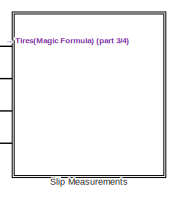
[diagram: root canvas - part 1/4, top right region]
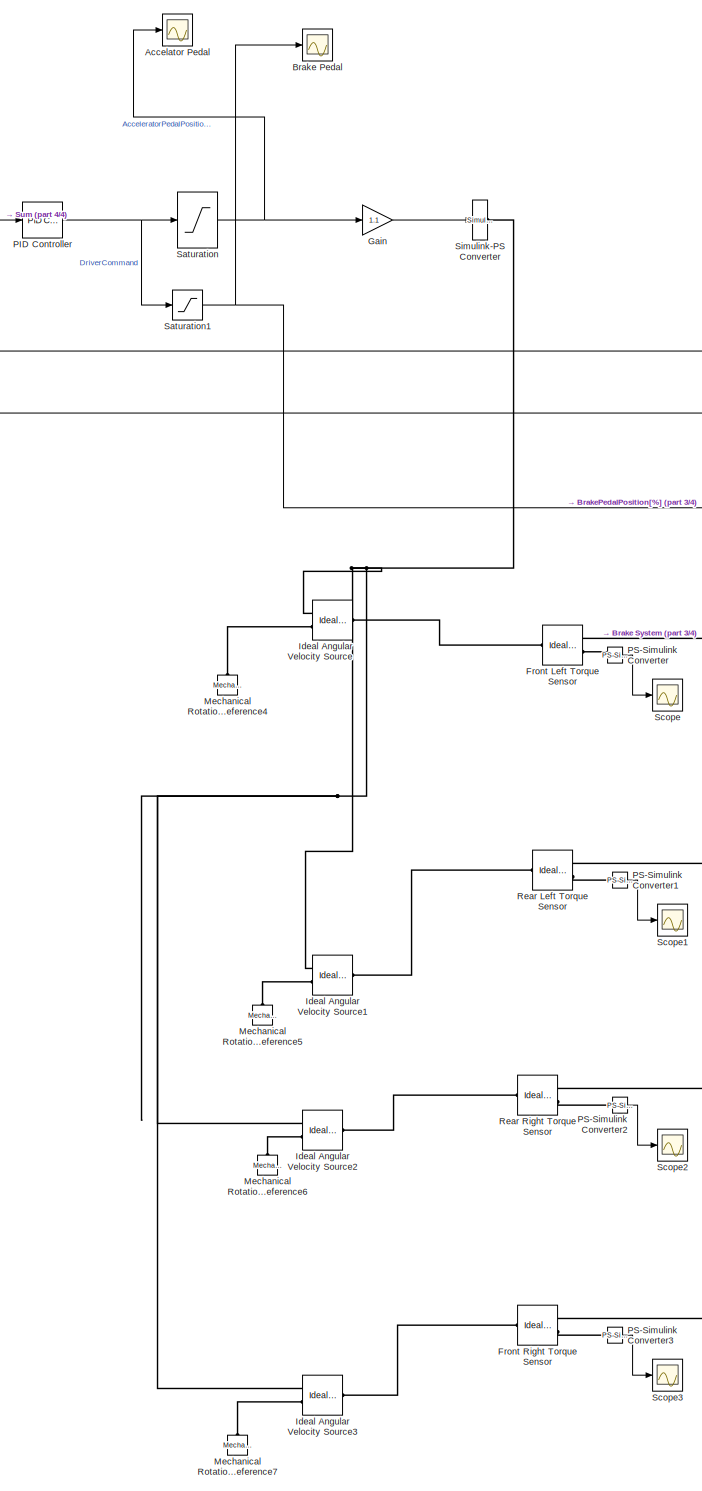
[diagram: root canvas - part 2/4, left side, full height]
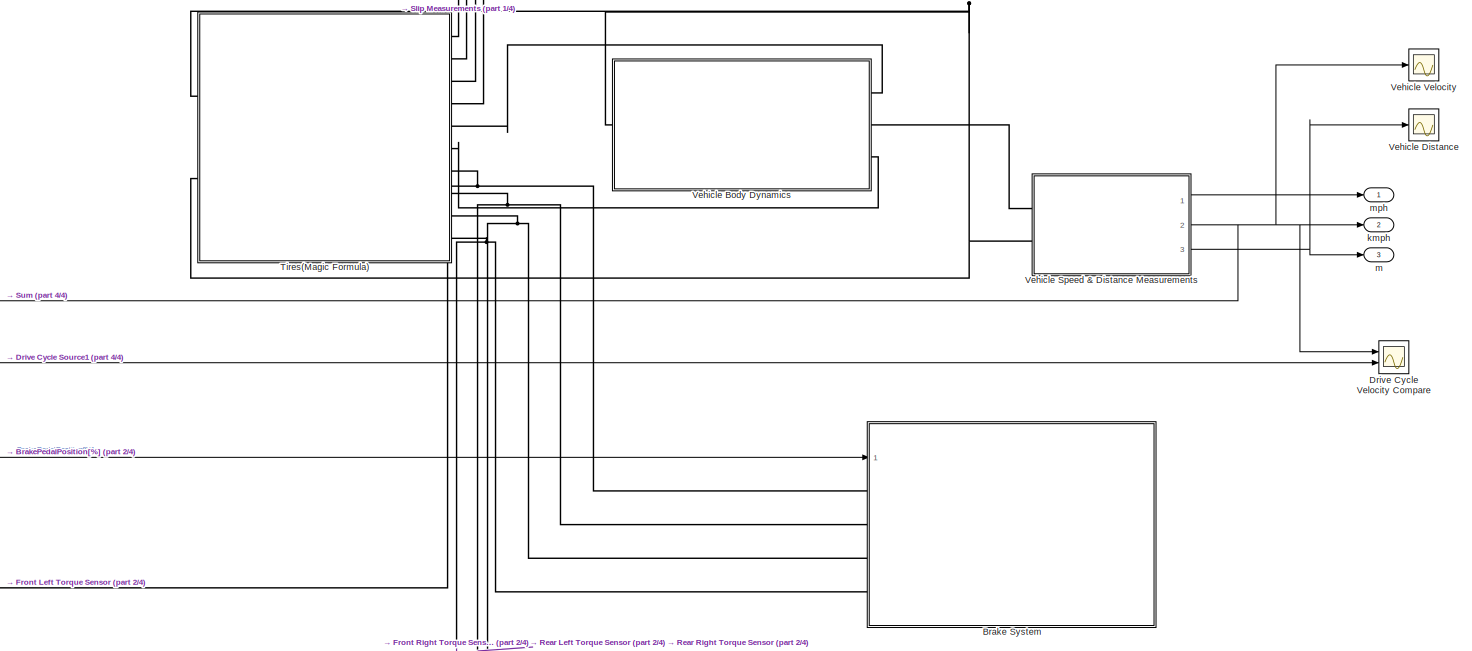
[diagram: root canvas - part 3/4, middle right region]
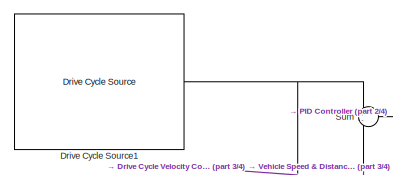
[diagram: root canvas - part 4/4, top left region]
MODEL slx_d82fa2652382
KIND model
CONFIG AbsTol = auto
CONFIG EnableMultiTasking = off
CONFIG FixedStep = auto
CONFIG MaxStep = auto
CONFIG MinStep = auto
CONFIG RelTol = 1e-3
CONFIG SampleTimeConstraint = Unconstrained
CONFIG SolverName = VariableStepAuto
CONFIG StartTime = 0.0
CONFIG StopTime = 660
BLOCK [Scope] Accelator Pedal
  Floating = off
  NumInputPorts = 1
  Ports = [1]
  ScopeSpecificationString = Simulink.scopes.TimeScopeBlockCfg('CurrentConfiguration', extmgr.ConfigurationSet(extmgr.Configuration('Core','General UI',true),extmgr.Configuration('Core','Source UI',true),extmgr.Configuration('Sources','WiredSimulink',true,'DataLoggingVariableName','ScopeData1'),extmgr.Configuration('Visuals','Time Domain',true,'SerializedDisplays',{struct('MinYLimReal','-2.7185','MaxYLimReal','24.46652','YLab...<+1462ch>
BLOCK [Scope] Brake Pedal
  Floating = off
  NumInputPorts = 1
  Ports = [1]
  ScopeSpecificationString = Simulink.scopes.TimeScopeBlockCfg('CurrentConfiguration', extmgr.ConfigurationSet(extmgr.Configuration('Core','General UI',true),extmgr.Configuration('Core','Source UI',true),extmgr.Configuration('Sources','WiredSimulink',true,'DataLoggingVariableName','ScopeData2'),extmgr.Configuration('Visuals','Time Domain',true,'SerializedDisplays',{struct('MinYLimReal','-3.50791','MaxYLimReal','31.57119','YLa...<+1417ch>
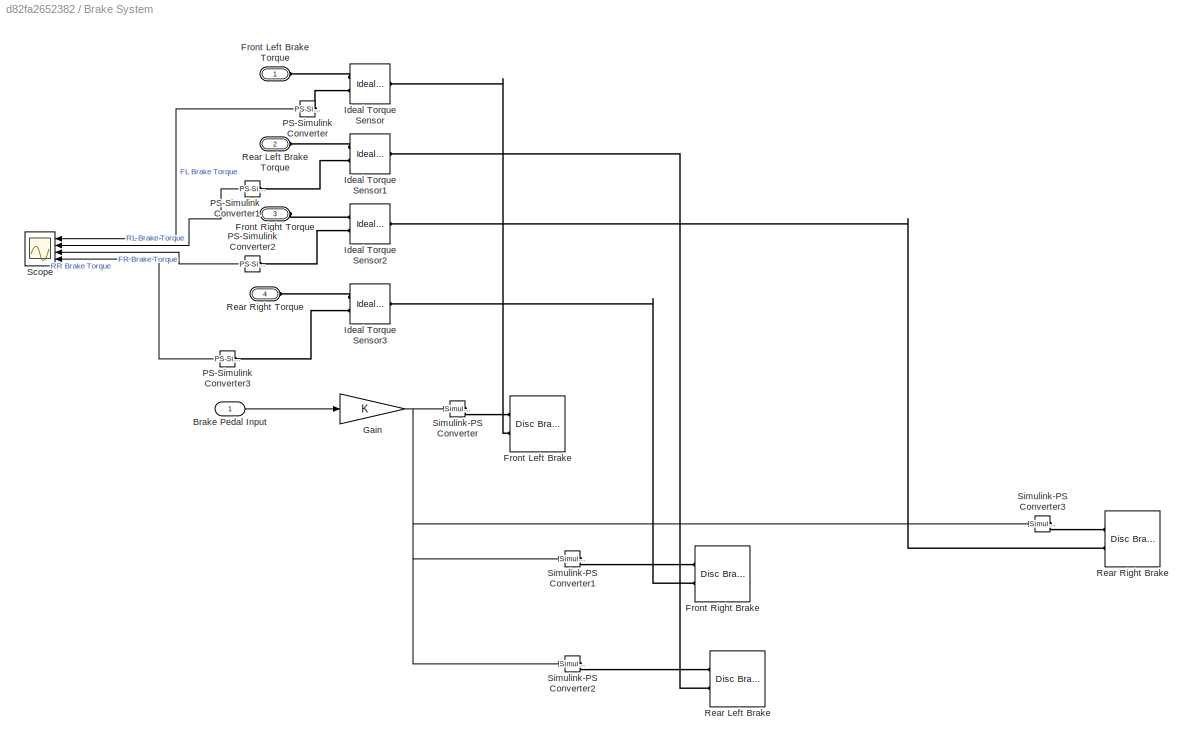
BLOCK [SubSystem] Brake System
  Ports = [1, 0, 0, 0, 0, 4]
  RequestExecContextInheritance = off
BLOCK [Inport] Brake System/Brake Pedal Input
BLOCK [Reference] Brake System/Front Left Brake  REF=sdl_lib/Brakes & Detents/Rotational/Disc Brake
  Ports = [0, 0, 0, 0, 0, 2]
  SourceBlock = sdl_lib/Brakes & Detents/Rotational/Disc Brake
  SourceProductBaseCode = LD
  SourceType = Disc Brake
BLOCK [PMIOPort] Brake System/Front Left Brake Torque
  Side = Left
BLOCK [Reference] Brake System/Front Right Brake  REF=sdl_lib/Brakes & Detents/Rotational/Disc Brake
  Ports = [0, 0, 0, 0, 0, 2]
  SourceBlock = sdl_lib/Brakes & Detents/Rotational/Disc Brake
  SourceProductBaseCode = LD
  SourceType = Disc Brake
BLOCK [PMIOPort] Brake System/Front Right Torque
  Port = 3
  Side = Left
BLOCK [Gain] Brake System/Gain
BLOCK [Reference] Brake System/Ideal Torque Sensor  REF=fl_lib/Mechanical/Mechanical Sensors/Ideal Torque Sensor
  Ports = [0, 0, 0, 0, 0, 1, 2]
  SourceBlock = fl_lib/Mechanical/Mechanical Sensors/Ideal Torque Sensor
  SourceProductBaseCode = SS
  SourceType = Ideal Torque Sensor
BLOCK [Reference] Brake System/Ideal Torque Sensor1  REF=fl_lib/Mechanical/Mechanical Sensors/Ideal Torque Sensor
  Ports = [0, 0, 0, 0, 0, 1, 2]
  SourceBlock = fl_lib/Mechanical/Mechanical Sensors/Ideal Torque Sensor
  SourceProductBaseCode = SS
  SourceType = Ideal Torque Sensor
BLOCK [Reference] Brake System/Ideal Torque Sensor2  REF=fl_lib/Mechanical/Mechanical Sensors/Ideal Torque Sensor
  Ports = [0, 0, 0, 0, 0, 1, 2]
  SourceBlock = fl_lib/Mechanical/Mechanical Sensors/Ideal Torque Sensor
  SourceProductBaseCode = SS
  SourceType = Ideal Torque Sensor
BLOCK [Reference] Brake System/Ideal Torque Sensor3  REF=fl_lib/Mechanical/Mechanical Sensors/Ideal Torque Sensor
  Ports = [0, 0, 0, 0, 0, 1, 2]
  SourceBlock = fl_lib/Mechanical/Mechanical Sensors/Ideal Torque Sensor
  SourceProductBaseCode = SS
  SourceType = Ideal Torque Sensor
BLOCK [Reference] Brake System/PS-Simulink Converter  REF=nesl_utility/PS-Simulink
Converter
  Ports = [0, 1, 0, 0, 0, 1]
  SourceBlock = nesl_utility/PS-Simulink\nConverter
  SourceProductBaseCode = PW,SS
  SourceType = PS-Simulink\nConverter
BLOCK [Reference] Brake System/PS-Simulink Converter1  REF=nesl_utility/PS-Simulink
Converter
  Ports = [0, 1, 0, 0, 0, 1]
  SourceBlock = nesl_utility/PS-Simulink\nConverter
  SourceProductBaseCode = PW,SS
  SourceType = PS-Simulink\nConverter
BLOCK [Reference] Brake System/PS-Simulink Converter2  REF=nesl_utility/PS-Simulink
Converter
  Ports = [0, 1, 0, 0, 0, 1]
  SourceBlock = nesl_utility/PS-Simulink\nConverter
  SourceProductBaseCode = PW,SS
  SourceType = PS-Simulink\nConverter
BLOCK [Reference] Brake System/PS-Simulink Converter3  REF=nesl_utility/PS-Simulink
Converter
  Ports = [0, 1, 0, 0, 0, 1]
  SourceBlock = nesl_utility/PS-Simulink\nConverter
  SourceProductBaseCode = PW,SS
  SourceType = PS-Simulink\nConverter
BLOCK [Reference] Brake System/Rear Left Brake  REF=sdl_lib/Brakes & Detents/Rotational/Disc Brake
  Ports = [0, 0, 0, 0, 0, 2]
  SourceBlock = sdl_lib/Brakes & Detents/Rotational/Disc Brake
  SourceProductBaseCode = LD
  SourceType = Disc Brake
BLOCK [PMIOPort] Brake System/Rear Left Brake Torque
  Port = 2
  Side = Left
BLOCK [Reference] Brake System/Rear Right Brake  REF=sdl_lib/Brakes & Detents/Rotational/Disc Brake
  Ports = [0, 0, 0, 0, 0, 2]
  SourceBlock = sdl_lib/Brakes & Detents/Rotational/Disc Brake
  SourceProductBaseCode = LD
  SourceType = Disc Brake
BLOCK [PMIOPort] Brake System/Rear Right Torque
  Port = 4
  Side = Left
BLOCK [Scope] Brake System/Scope
  Floating = off
  NumInputPorts = 4
  Ports = [4]
  ScopeSpecificationString = Simulink.scopes.TimeScopeBlockCfg('CurrentConfiguration', extmgr.ConfigurationSet(extmgr.Configuration('Core','General UI',true),extmgr.Configuration('Core','Source UI',true),extmgr.Configuration('Sources','WiredSimulink',true,'DataLoggingVariableName','ScopeData2'),extmgr.Configuration('Visuals','Time Domain',true,'SerializedDisplays',{struct('MinYLimReal','-52.07151','MaxYLimReal','5.78572','YLa...<+1432ch>
BLOCK [Reference] Brake System/Simulink-PS Converter  REF=nesl_utility/Simulink-PS
Converter
  Ports = [1, 0, 0, 0, 0, 0, 1]
  SourceBlock = nesl_utility/Simulink-PS\nConverter
  SourceProductBaseCode = PW,SS
  SourceType = Simulink-PS\nConverter
BLOCK [Reference] Brake System/Simulink-PS Converter1  REF=nesl_utility/Simulink-PS
Converter
  Ports = [1, 0, 0, 0, 0, 0, 1]
  SourceBlock = nesl_utility/Simulink-PS\nConverter
  SourceProductBaseCode = PW,SS
  SourceType = Simulink-PS\nConverter
BLOCK [Reference] Brake System/Simulink-PS Converter2  REF=nesl_utility/Simulink-PS
Converter
  Ports = [1, 0, 0, 0, 0, 0, 1]
  SourceBlock = nesl_utility/Simulink-PS\nConverter
  SourceProductBaseCode = PW,SS
  SourceType = Simulink-PS\nConverter
BLOCK [Reference] Brake System/Simulink-PS Converter3  REF=nesl_utility/Simulink-PS
Converter
  Ports = [1, 0, 0, 0, 0, 0, 1]
  SourceBlock = nesl_utility/Simulink-PS\nConverter
  SourceProductBaseCode = PW,SS
  SourceType = Simulink-PS\nConverter
BLOCK [Reference] Drive Cycle Source1  REF=autolibshared/Drive Cycle Source
  AttributesFormatString = %<cycleVar> (%<tfinal>)
  Ports = [0, 1]
  SourceBlock = autolibshared/Drive Cycle Source
  SourceProductBaseCode = PW,DR,MT,UV,VE
  SourceType = Drive Cycle Source
BLOCK [Scope] Drive Cycle Velocity Compare
  Floating = off
  NumInputPorts = 2
  Ports = [2]
  ScopeSpecificationString = Simulink.scopes.TimeScopeBlockCfg('CurrentConfiguration', extmgr.ConfigurationSet(extmgr.Configuration('Core','General UI',true),extmgr.Configuration('Core','Source UI',true),extmgr.Configuration('Sources','WiredSimulink',true,'DataLoggingVariableName','ScopeData7'),extmgr.Configuration('Visuals','Time Domain',true,'SerializedDisplays',{struct('MinYLimReal','-3.1684','MaxYLimReal','28.51556','YLab...<+1496ch>
BLOCK [Reference] Front Left Torque Sensor  REF=fl_lib/Mechanical/Mechanical Sensors/Ideal Torque Sensor
  Ports = [0, 0, 0, 0, 0, 1, 2]
  SourceBlock = fl_lib/Mechanical/Mechanical Sensors/Ideal Torque Sensor
  SourceProductBaseCode = SS
  SourceType = Ideal Torque Sensor
BLOCK [Reference] Front Right Torque Sensor  REF=fl_lib/Mechanical/Mechanical Sensors/Ideal Torque Sensor
  Ports = [0, 0, 0, 0, 0, 1, 2]
  SourceBlock = fl_lib/Mechanical/Mechanical Sensors/Ideal Torque Sensor
  SourceProductBaseCode = SS
  SourceType = Ideal Torque Sensor
BLOCK [Gain] Gain
  Gain = 1.1
BLOCK [Reference] Ideal Angular Velocity Source  REF=fl_lib/Mechanical/Mechanical Sources/Ideal Angular
Velocity Source
  Ports = [0, 0, 0, 0, 0, 1, 2]
  SourceBlock = fl_lib/Mechanical/Mechanical Sources/Ideal Angular\nVelocity Source
  SourceProductBaseCode = SS
  SourceType = Ideal Angular\nVelocity Source
BLOCK [Reference] Ideal Angular Velocity Source1  REF=fl_lib/Mechanical/Mechanical Sources/Ideal Angular
Velocity Source
  Ports = [0, 0, 0, 0, 0, 1, 2]
  SourceBlock = fl_lib/Mechanical/Mechanical Sources/Ideal Angular\nVelocity Source
  SourceProductBaseCode = SS
  SourceType = Ideal Angular\nVelocity Source
BLOCK [Reference] Ideal Angular Velocity Source2  REF=fl_lib/Mechanical/Mechanical Sources/Ideal Angular
Velocity Source
  Ports = [0, 0, 0, 0, 0, 1, 2]
  SourceBlock = fl_lib/Mechanical/Mechanical Sources/Ideal Angular\nVelocity Source
  SourceProductBaseCode = SS
  SourceType = Ideal Angular\nVelocity Source
BLOCK [Reference] Ideal Angular Velocity Source3  REF=fl_lib/Mechanical/Mechanical Sources/Ideal Angular
Velocity Source
  Ports = [0, 0, 0, 0, 0, 1, 2]
  SourceBlock = fl_lib/Mechanical/Mechanical Sources/Ideal Angular\nVelocity Source
  SourceProductBaseCode = SS
  SourceType = Ideal Angular\nVelocity Source
BLOCK [Reference] Mechanical Rotational Reference4  REF=fl_lib/Mechanical/Rotational Elements/Mechanical
Rotational Reference
  NameLocation = right
  Ports = [0, 0, 0, 0, 0, 1]
  SourceBlock = fl_lib/Mechanical/Rotational Elements/Mechanical\nRotational Reference
  SourceProductBaseCode = SS
  SourceType = Mechanical\nRotational Reference
BLOCK [Reference] Mechanical Rotational Reference5  REF=fl_lib/Mechanical/Rotational Elements/Mechanical
Rotational Reference
  NameLocation = right
  Ports = [0, 0, 0, 0, 0, 1]
  SourceBlock = fl_lib/Mechanical/Rotational Elements/Mechanical\nRotational Reference
  SourceProductBaseCode = SS
  SourceType = Mechanical\nRotational Reference
BLOCK [Reference] Mechanical Rotational Reference6  REF=fl_lib/Mechanical/Rotational Elements/Mechanical
Rotational Reference
  NameLocation = right
  Ports = [0, 0, 0, 0, 0, 1]
  SourceBlock = fl_lib/Mechanical/Rotational Elements/Mechanical\nRotational Reference
  SourceProductBaseCode = SS
  SourceType = Mechanical\nRotational Reference
BLOCK [Reference] Mechanical Rotational Reference7  REF=fl_lib/Mechanical/Rotational Elements/Mechanical
Rotational Reference
  NameLocation = right
  Ports = [0, 0, 0, 0, 0, 1]
  SourceBlock = fl_lib/Mechanical/Rotational Elements/Mechanical\nRotational Reference
  SourceProductBaseCode = SS
  SourceType = Mechanical\nRotational Reference
BLOCK [Reference] PID Controller  REF=slpidlib/PID Controller
  Ports = [1, 1]
  SourceBlock = slpidlib/PID Controller
  SourceProductBaseCode = SL
  SourceType = PID 1dof
BLOCK [Reference] PS-Simulink Converter  REF=nesl_utility/PS-Simulink
Converter
  Ports = [0, 1, 0, 0, 0, 1]
  SourceBlock = nesl_utility/PS-Simulink\nConverter
  SourceProductBaseCode = PW,SS
  SourceType = PS-Simulink\nConverter
BLOCK [Reference] PS-Simulink Converter1  REF=nesl_utility/PS-Simulink
Converter
  Ports = [0, 1, 0, 0, 0, 1]
  SourceBlock = nesl_utility/PS-Simulink\nConverter
  SourceProductBaseCode = PW,SS
  SourceType = PS-Simulink\nConverter
BLOCK [Reference] PS-Simulink Converter2  REF=nesl_utility/PS-Simulink
Converter
  Ports = [0, 1, 0, 0, 0, 1]
  SourceBlock = nesl_utility/PS-Simulink\nConverter
  SourceProductBaseCode = PW,SS
  SourceType = PS-Simulink\nConverter
BLOCK [Reference] PS-Simulink Converter3  REF=nesl_utility/PS-Simulink
Converter
  Ports = [0, 1, 0, 0, 0, 1]
  SourceBlock = nesl_utility/PS-Simulink\nConverter
  SourceProductBaseCode = PW,SS
  SourceType = PS-Simulink\nConverter
BLOCK [Reference] Rear Left Torque Sensor  REF=fl_lib/Mechanical/Mechanical Sensors/Ideal Torque Sensor
  Ports = [0, 0, 0, 0, 0, 1, 2]
  SourceBlock = fl_lib/Mechanical/Mechanical Sensors/Ideal Torque Sensor
  SourceProductBaseCode = SS
  SourceType = Ideal Torque Sensor
BLOCK [Reference] Rear Right Torque Sensor  REF=fl_lib/Mechanical/Mechanical Sensors/Ideal Torque Sensor
  Ports = [0, 0, 0, 0, 0, 1, 2]
  SourceBlock = fl_lib/Mechanical/Mechanical Sensors/Ideal Torque Sensor
  SourceProductBaseCode = SS
  SourceType = Ideal Torque Sensor
BLOCK [Saturate] Saturation
  LowerLimit = 0
  UpperLimit = 100
  ZeroCross = off
BLOCK [Saturate] Saturation1
  LowerLimit = 0
  UpperLimit = 100
  ZeroCross = off
BLOCK [Scope] Scope
  Floating = off
  NumInputPorts = 1
  Ports = [1]
  ScopeSpecificationString = Simulink.scopes.TimeScopeBlockCfg('CurrentConfiguration', extmgr.ConfigurationSet(extmgr.Configuration('Core','General UI',true),extmgr.Configuration('Core','Source UI',true),extmgr.Configuration('Sources','WiredSimulink',true,'DataLoggingVariableName','ScopeData3'),extmgr.Configuration('Visuals','Time Domain',true,'SerializedDisplays',{struct('MinYLimReal','-92.81783','MaxYLimReal','63.17198','YL...<+1460ch>
BLOCK [Scope] Scope1
  Floating = off
  NumInputPorts = 1
  Ports = [1]
  ScopeSpecificationString = Simulink.scopes.TimeScopeBlockCfg('CurrentConfiguration', extmgr.ConfigurationSet(extmgr.Configuration('Core','General UI',true),extmgr.Configuration('Core','Source UI',true),extmgr.Configuration('Sources','WiredSimulink',true,'DataLoggingVariableName','ScopeData4'),extmgr.Configuration('Visuals','Time Domain',true,'SerializedDisplays',{struct('MinYLimReal','-179.9736','MaxYLimReal','237.32591','Y...<+1393ch>
BLOCK [Scope] Scope2
  Floating = off
  NumInputPorts = 1
  Ports = [1]
  ScopeSpecificationString = Simulink.scopes.TimeScopeBlockCfg('CurrentConfiguration', extmgr.ConfigurationSet(extmgr.Configuration('Core','General UI',true),extmgr.Configuration('Core','Source UI',true),extmgr.Configuration('Sources','WiredSimulink',true,'DataLoggingVariableName','ScopeData5'),extmgr.Configuration('Visuals','Time Domain',true,'SerializedDisplays',{struct('MinYLimReal','-179.9736','MaxYLimReal','237.32591','Y...<+1393ch>
BLOCK [Scope] Scope3
  Floating = off
  NumInputPorts = 1
  Ports = [1]
  ScopeSpecificationString = Simulink.scopes.TimeScopeBlockCfg('CurrentConfiguration', extmgr.ConfigurationSet(extmgr.Configuration('Core','General UI',true),extmgr.Configuration('Core','Source UI',true),extmgr.Configuration('Sources','WiredSimulink',true,'DataLoggingVariableName','ScopeData6'),extmgr.Configuration('Visuals','Time Domain',true,'SerializedDisplays',{struct('MinYLimReal','-218.53143','MaxYLimReal','164.93328','...<+1424ch>
BLOCK [Reference] Simulink-PS Converter  REF=nesl_utility/Simulink-PS
Converter
  Ports = [1, 0, 0, 0, 0, 0, 1]
  SourceBlock = nesl_utility/Simulink-PS\nConverter
  SourceProductBaseCode = PW,SS
  SourceType = Simulink-PS\nConverter
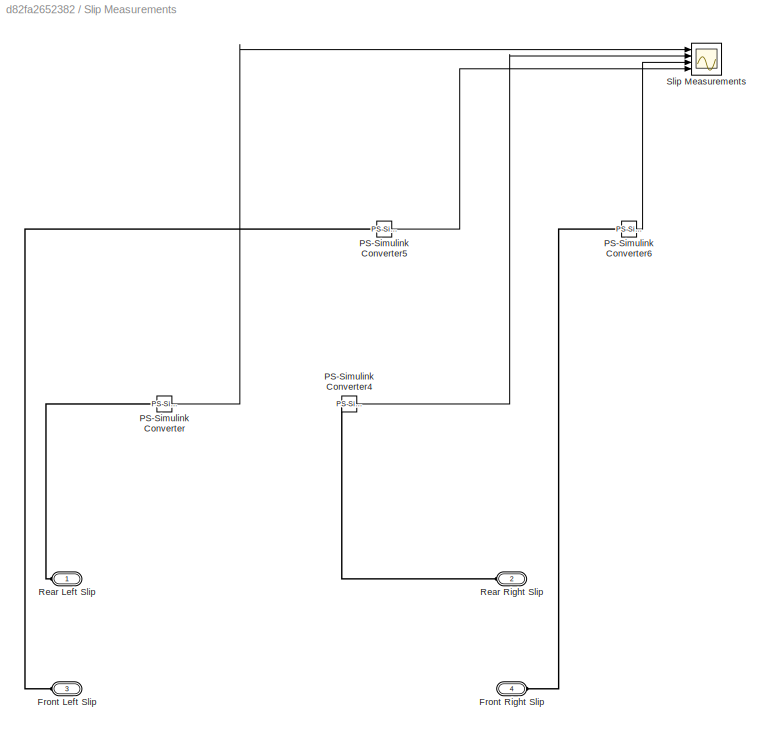
BLOCK [SubSystem] Slip Measurements
  Ports = [0, 0, 0, 0, 0, 4]
  RequestExecContextInheritance = off
BLOCK [PMIOPort] Slip Measurements/Front Left Slip
  Port = 3
  Side = Left
BLOCK [PMIOPort] Slip Measurements/Front Right Slip
  Port = 4
  Side = Left
BLOCK [Reference] Slip Measurements/PS-Simulink Converter  REF=nesl_utility/PS-Simulink
Converter
  Ports = [0, 1, 0, 0, 0, 1]
  SourceBlock = nesl_utility/PS-Simulink\nConverter
  SourceProductBaseCode = PW,SS
  SourceType = PS-Simulink\nConverter
BLOCK [Reference] Slip Measurements/PS-Simulink Converter4  REF=nesl_utility/PS-Simulink
Converter
  Ports = [0, 1, 0, 0, 0, 1]
  SourceBlock = nesl_utility/PS-Simulink\nConverter
  SourceProductBaseCode = PW,SS
  SourceType = PS-Simulink\nConverter
BLOCK [Reference] Slip Measurements/PS-Simulink Converter5  REF=nesl_utility/PS-Simulink
Converter
  Ports = [0, 1, 0, 0, 0, 1]
  SourceBlock = nesl_utility/PS-Simulink\nConverter
  SourceProductBaseCode = PW,SS
  SourceType = PS-Simulink\nConverter
BLOCK [Reference] Slip Measurements/PS-Simulink Converter6  REF=nesl_utility/PS-Simulink
Converter
  Ports = [0, 1, 0, 0, 0, 1]
  SourceBlock = nesl_utility/PS-Simulink\nConverter
  SourceProductBaseCode = PW,SS
  SourceType = PS-Simulink\nConverter
BLOCK [PMIOPort] Slip Measurements/Rear Left Slip
  Side = Left
BLOCK [PMIOPort] Slip Measurements/Rear Right Slip
  Port = 2
  Side = Left
BLOCK [Scope] Slip Measurements/Slip Measurements
  Floating = off
  NumInputPorts = 4
  Ports = [4]
  ScopeSpecificationString = Simulink.scopes.TimeScopeBlockCfg('CurrentConfiguration', extmgr.ConfigurationSet(extmgr.Configuration('Core','General UI',true),extmgr.Configuration('Core','Source UI',true),extmgr.Configuration('Sources','WiredSimulink',true),extmgr.Configuration('Visuals','Time Domain',true,'SerializedDisplays',{struct('MinYLimReal','-0.03175','MaxYLimReal','0.00836','YLabelReal','','MinYLimMag','0.00000','MaxY...<+3497ch>
BLOCK [Sum] Sum
  Inputs = +-
  Ports = [2, 1]
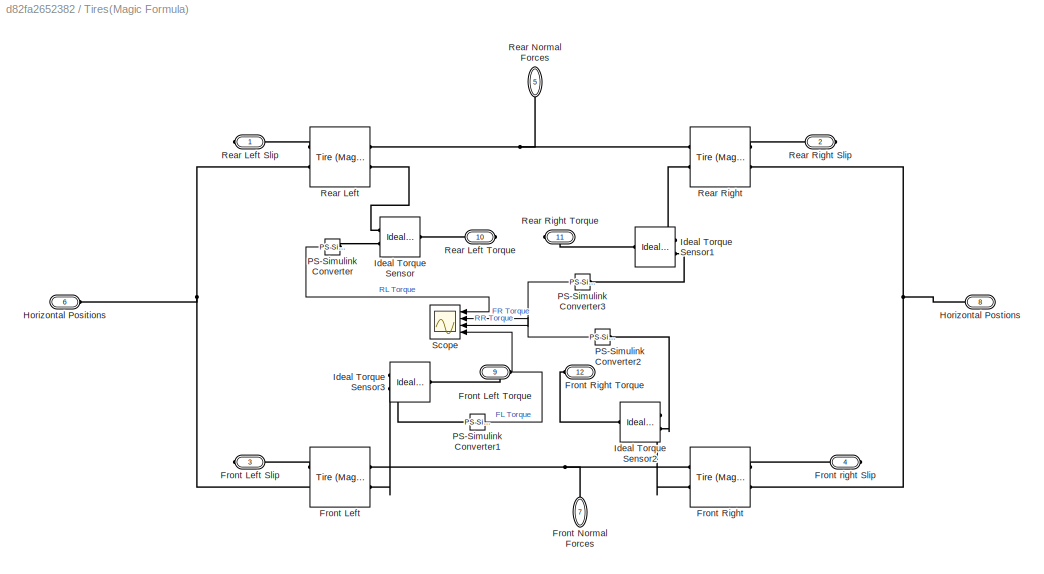
BLOCK [SubSystem] Tires(Magic Formula)
  Ports = [0, 0, 0, 0, 0, 2, 10]
  RequestExecContextInheritance = off
BLOCK [Reference] Tires(Magic Formula)/Front Left  REF=sdl_lib/Tires & Vehicles/Tire (Magic Formula)
  Ports = [0, 0, 0, 0, 0, 2, 2]
  SourceBlock = sdl_lib/Tires & Vehicles/Tire (Magic Formula)
  SourceProductBaseCode = LD
  SourceType = Tire (Magic Formula)
BLOCK [PMIOPort] Tires(Magic Formula)/Front Left Slip
  Port = 3
  Side = Right
BLOCK [PMIOPort] Tires(Magic Formula)/Front Left Torque
  Port = 9
  Side = Right
BLOCK [PMIOPort] Tires(Magic Formula)/Front Normal Forces
  NameLocation = left
  Port = 7
  Side = Right
BLOCK [Reference] Tires(Magic Formula)/Front Right  REF=sdl_lib/Tires & Vehicles/Tire (Magic Formula)
  Ports = [0, 0, 0, 0, 0, 2, 2]
  SourceBlock = sdl_lib/Tires & Vehicles/Tire (Magic Formula)
  SourceProductBaseCode = LD
  SourceType = Tire (Magic Formula)
BLOCK [PMIOPort] Tires(Magic Formula)/Front Right Torque
  NameLocation = top
  Port = 12
  Side = Right
BLOCK [PMIOPort] Tires(Magic Formula)/Front right Slip
  Port = 4
  Side = Right
BLOCK [PMIOPort] Tires(Magic Formula)/Horizontal Positions
  Port = 6
  Side = Left
BLOCK [PMIOPort] Tires(Magic Formula)/Horizontal Postions
  Port = 8
  Side = Left
BLOCK [Reference] Tires(Magic Formula)/Ideal Torque Sensor  REF=fl_lib/Mechanical/Mechanical Sensors/Ideal Torque Sensor
  Ports = [0, 0, 0, 0, 0, 1, 2]
  SourceBlock = fl_lib/Mechanical/Mechanical Sensors/Ideal Torque Sensor
  SourceProductBaseCode = SS
  SourceType = Ideal Torque Sensor
BLOCK [Reference] Tires(Magic Formula)/Ideal Torque Sensor1  REF=fl_lib/Mechanical/Mechanical Sensors/Ideal Torque Sensor
  Ports = [0, 0, 0, 0, 0, 1, 2]
  SourceBlock = fl_lib/Mechanical/Mechanical Sensors/Ideal Torque Sensor
  SourceProductBaseCode = SS
  SourceType = Ideal Torque Sensor
BLOCK [Reference] Tires(Magic Formula)/Ideal Torque Sensor2  REF=fl_lib/Mechanical/Mechanical Sensors/Ideal Torque Sensor
  Ports = [0, 0, 0, 0, 0, 1, 2]
  SourceBlock = fl_lib/Mechanical/Mechanical Sensors/Ideal Torque Sensor
  SourceProductBaseCode = SS
  SourceType = Ideal Torque Sensor
BLOCK [Reference] Tires(Magic Formula)/Ideal Torque Sensor3  REF=fl_lib/Mechanical/Mechanical Sensors/Ideal Torque Sensor
  Ports = [0, 0, 0, 0, 0, 1, 2]
  SourceBlock = fl_lib/Mechanical/Mechanical Sensors/Ideal Torque Sensor
  SourceProductBaseCode = SS
  SourceType = Ideal Torque Sensor
BLOCK [Reference] Tires(Magic Formula)/PS-Simulink Converter  REF=nesl_utility/PS-Simulink
Converter
  Ports = [0, 1, 0, 0, 0, 1]
  SourceBlock = nesl_utility/PS-Simulink\nConverter
  SourceProductBaseCode = PW,SS
  SourceType = PS-Simulink\nConverter
BLOCK [Reference] Tires(Magic Formula)/PS-Simulink Converter1  REF=nesl_utility/PS-Simulink
Converter
  Ports = [0, 1, 0, 0, 0, 1]
  SourceBlock = nesl_utility/PS-Simulink\nConverter
  SourceProductBaseCode = PW,SS
  SourceType = PS-Simulink\nConverter
BLOCK [Reference] Tires(Magic Formula)/PS-Simulink Converter2  REF=nesl_utility/PS-Simulink
Converter
  Ports = [0, 1, 0, 0, 0, 1]
  SourceBlock = nesl_utility/PS-Simulink\nConverter
  SourceProductBaseCode = PW,SS
  SourceType = PS-Simulink\nConverter
BLOCK [Reference] Tires(Magic Formula)/PS-Simulink Converter3  REF=nesl_utility/PS-Simulink
Converter
  Ports = [0, 1, 0, 0, 0, 1]
  SourceBlock = nesl_utility/PS-Simulink\nConverter
  SourceProductBaseCode = PW,SS
  SourceType = PS-Simulink\nConverter
BLOCK [Reference] Tires(Magic Formula)/Rear Left  REF=sdl_lib/Tires & Vehicles/Tire (Magic Formula)
  Ports = [0, 0, 0, 0, 0, 2, 2]
  SourceBlock = sdl_lib/Tires & Vehicles/Tire (Magic Formula)
  SourceProductBaseCode = LD
  SourceType = Tire (Magic Formula)
BLOCK [PMIOPort] Tires(Magic Formula)/Rear Left Slip
  Side = Right
BLOCK [PMIOPort] Tires(Magic Formula)/Rear Left Torque
  Port = 10
  Side = Right
BLOCK [PMIOPort] Tires(Magic Formula)/Rear Normal Forces
  NameLocation = left
  Port = 5
  Side = Right
BLOCK [Reference] Tires(Magic Formula)/Rear Right  REF=sdl_lib/Tires & Vehicles/Tire (Magic Formula)
  Ports = [0, 0, 0, 0, 0, 2, 2]
  SourceBlock = sdl_lib/Tires & Vehicles/Tire (Magic Formula)
  SourceProductBaseCode = LD
  SourceType = Tire (Magic Formula)
BLOCK [PMIOPort] Tires(Magic Formula)/Rear Right Slip
  Port = 2
  Side = Right
BLOCK [PMIOPort] Tires(Magic Formula)/Rear Right Torque
  Port = 11
  Side = Right
BLOCK [Scope] Tires(Magic Formula)/Scope
  Floating = off
  NumInputPorts = 4
  Ports = [4]
  ScopeSpecificationString = Simulink.scopes.TimeScopeBlockCfg('CurrentConfiguration', extmgr.ConfigurationSet(extmgr.Configuration('Core','General UI',true),extmgr.Configuration('Core','Source UI',true),extmgr.Configuration('Sources','WiredSimulink',true,'DataLoggingVariableName','ScopeData1'),extmgr.Configuration('Visuals','Time Domain',true,'SerializedDisplays',{struct('MinYLimReal','-93.03278','MaxYLimReal','27.52931','YL...<+1452ch>
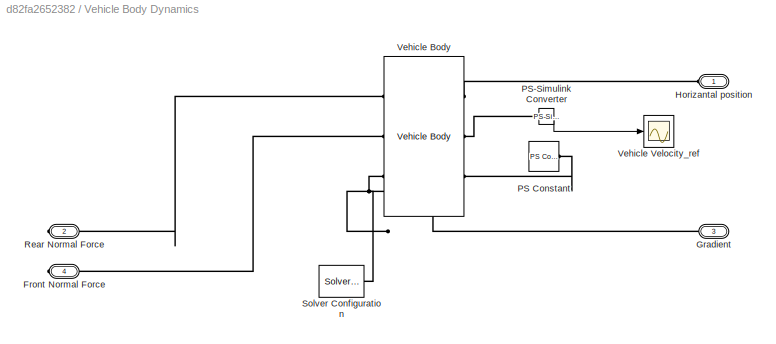
BLOCK [SubSystem] Vehicle Body Dynamics
  Ports = [0, 0, 0, 0, 0, 1, 3]
  RequestExecContextInheritance = off
BLOCK [PMIOPort] Vehicle Body Dynamics/Front Normal Force
  Port = 4
  Side = Right
BLOCK [PMIOPort] Vehicle Body Dynamics/Gradient
  Port = 3
  Side = Right
BLOCK [PMIOPort] Vehicle Body Dynamics/Horizantal position
  Side = Left
BLOCK [Reference] Vehicle Body Dynamics/PS Constant  REF=fl_lib/Physical Signals/Sources/PS Constant
  Ports = [0, 0, 0, 0, 0, 0, 1]
  SourceBlock = fl_lib/Physical Signals/Sources/PS Constant
  SourceProductBaseCode = SS
  SourceType = PS Constant
BLOCK [Reference] Vehicle Body Dynamics/PS-Simulink Converter  REF=nesl_utility/PS-Simulink
Converter
  Ports = [0, 1, 0, 0, 0, 1]
  SourceBlock = nesl_utility/PS-Simulink\nConverter
  SourceProductBaseCode = PW,SS
  SourceType = PS-Simulink\nConverter
BLOCK [PMIOPort] Vehicle Body Dynamics/Rear Normal Force
  Port = 2
  Side = Right
BLOCK [Reference] Vehicle Body Dynamics/Solver Configuration  REF=nesl_utility/Solver
Configuration
  Ports = [0, 0, 0, 0, 0, 0, 1]
  SourceBlock = nesl_utility/Solver\nConfiguration
  SourceProductBaseCode = PW,SS
  SourceType = Solver\nConfiguration
BLOCK [Reference] Vehicle Body Dynamics/Vehicle Body  REF=sdl_lib/Tires & Vehicles/Vehicle Body
  Ports = [0, 0, 0, 0, 0, 3, 3]
  SourceBlock = sdl_lib/Tires & Vehicles/Vehicle Body
  SourceProductBaseCode = LD
  SourceType = Vehicle Body
BLOCK [Scope] Vehicle Body Dynamics/Vehicle Velocity_ref
  Floating = off
  NumInputPorts = 1
  Ports = [1]
  ScopeSpecificationString = Simulink.scopes.TimeScopeBlockCfg('CurrentConfiguration', extmgr.ConfigurationSet(extmgr.Configuration('Core','General UI',true),extmgr.Configuration('Core','Source UI',true),extmgr.Configuration('Sources','WiredSimulink',true,'DataLoggingVariableName','ScopeData4'),extmgr.Configuration('Visuals','Time Domain',true,'SerializedDisplays',{struct('MinYLimReal','-0.75502','MaxYLimReal','6.79517','YLab...<+1454ch>
BLOCK [Scope] Vehicle Distance
  Floating = off
  NumInputPorts = 1
  Ports = [1]
  ScopeSpecificationString = Simulink.scopes.TimeScopeBlockCfg('CurrentConfiguration', extmgr.ConfigurationSet(extmgr.Configuration('Core','General UI',true),extmgr.Configuration('Core','Source UI',true),extmgr.Configuration('Sources','WiredSimulink',true,'DataLoggingVariableName','ScopeData2'),extmgr.Configuration('Visuals','Time Domain',true,'SerializedDisplays',{struct('MinYLimReal','-230.05495','MaxYLimReal','2070.49455',...<+1441ch>
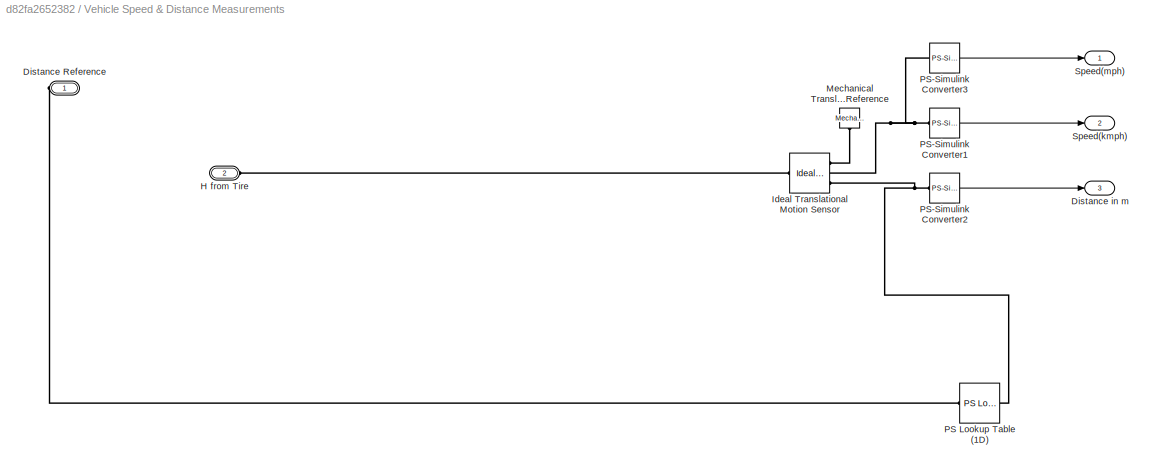
BLOCK [SubSystem] Vehicle Speed & Distance Measurements
  Ports = [0, 3, 0, 0, 0, 2]
  RequestExecContextInheritance = off
BLOCK [PMIOPort] Vehicle Speed & Distance Measurements/Distance Reference
  Side = Left
BLOCK [Outport] Vehicle Speed & Distance Measurements/Distance in m
  Port = 3
  VectorParamsAs1DForOutWhenUnconnected = off
BLOCK [PMIOPort] Vehicle Speed & Distance Measurements/H from Tire
  Port = 2
  Side = Left
BLOCK [Reference] Vehicle Speed & Distance Measurements/Ideal Translational Motion Sensor  REF=fl_lib/Mechanical/Mechanical Sensors/Ideal Translational
Motion Sensor
  Ports = [0, 0, 0, 0, 0, 1, 3]
  SourceBlock = fl_lib/Mechanical/Mechanical Sensors/Ideal Translational\nMotion Sensor
  SourceProductBaseCode = SS
  SourceType = Ideal Translational\nMotion Sensor
BLOCK [Reference] Vehicle Speed & Distance Measurements/Mechanical Translational Reference  REF=fl_lib/Mechanical/Translational
Elements/Mechanical
Translational
Reference
  NameLocation = left
  Ports = [0, 0, 0, 0, 0, 1]
  SourceBlock = fl_lib/Mechanical/Translational\nElements/Mechanical\nTranslational\nReference
  SourceProductBaseCode = SS
  SourceType = Mechanical\nTranslational\nReference
BLOCK [Reference] Vehicle Speed & Distance Measurements/PS Lookup Table (1D)  REF=fl_lib/Physical Signals/Lookup Tables/PS Lookup Table (1D)
  Ports = [0, 0, 0, 0, 0, 1, 1]
  SourceBlock = fl_lib/Physical Signals/Lookup Tables/PS Lookup Table (1D)
  SourceProductBaseCode = SS
  SourceType = PS Lookup Table (1D)
BLOCK [Reference] Vehicle Speed & Distance Measurements/PS-Simulink Converter1  REF=nesl_utility/PS-Simulink
Converter
  Ports = [0, 1, 0, 0, 0, 1]
  SourceBlock = nesl_utility/PS-Simulink\nConverter
  SourceProductBaseCode = SS
  SourceType = PS-Simulink\nConverter
BLOCK [Reference] Vehicle Speed & Distance Measurements/PS-Simulink Converter2  REF=nesl_utility/PS-Simulink
Converter
  Ports = [0, 1, 0, 0, 0, 1]
  SourceBlock = nesl_utility/PS-Simulink\nConverter
  SourceProductBaseCode = SS
  SourceType = PS-Simulink\nConverter
BLOCK [Reference] Vehicle Speed & Distance Measurements/PS-Simulink Converter3  REF=nesl_utility/PS-Simulink
Converter
  Ports = [0, 1, 0, 0, 0, 1]
  SourceBlock = nesl_utility/PS-Simulink\nConverter
  SourceProductBaseCode = SS
  SourceType = PS-Simulink\nConverter
BLOCK [Outport] Vehicle Speed & Distance Measurements/Speed(kmph)
  Port = 2
  VectorParamsAs1DForOutWhenUnconnected = off
BLOCK [Outport] Vehicle Speed & Distance Measurements/Speed(mph)
  VectorParamsAs1DForOutWhenUnconnected = off
BLOCK [Scope] Vehicle Velocity
  Floating = off
  NumInputPorts = 1
  Ports = [1]
  ScopeSpecificationString = Simulink.scopes.TimeScopeBlockCfg('CurrentConfiguration', extmgr.ConfigurationSet(extmgr.Configuration('Core','General UI',true),extmgr.Configuration('Core','Source UI',true),extmgr.Configuration('Sources','WiredSimulink',true,'DataLoggingVariableName','ScopeData1'),extmgr.Configuration('Visuals','Time Domain',true,'SerializedDisplays',{struct('MinYLimReal','-3.16793','MaxYLimReal','28.51139','YLa...<+1460ch>
BLOCK [Outport] kmph
  Port = 2
  VectorParamsAs1DForOutWhenUnconnected = off
BLOCK [Outport] m
  Port = 3
  VectorParamsAs1DForOutWhenUnconnected = off
BLOCK [Outport] mph
  VectorParamsAs1DForOutWhenUnconnected = off
LINE Brake System/Brake Pedal Input:1 -> Brake System/Gain:1
NET Brake System/Gain:1 -> Brake System/Simulink-PS Converter1:1, Brake System/Simulink-PS Converter2:1, Brake System/Simulink-PS Converter3:1, Brake System/Simulink-PS Converter:1
LINE Brake System/PS-Simulink Converter1:1 -> Brake System/Scope:2
LINE Brake System/PS-Simulink Converter2:1 -> Brake System/Scope:3
LINE Brake System/PS-Simulink Converter3:1 -> Brake System/Scope:4
LINE Brake System/PS-Simulink Converter:1 -> Brake System/Scope:1
NET Drive Cycle Source1:1 -> Drive Cycle Velocity Compare:2, Sum:1
LINE Gain:1 -> Simulink-PS Converter:1
NET PID Controller:1 -> Saturation1:1, Saturation:1
LINE PS-Simulink Converter1:1 -> Scope1:1
LINE PS-Simulink Converter2:1 -> Scope2:1
LINE PS-Simulink Converter3:1 -> Scope3:1
LINE PS-Simulink Converter:1 -> Scope:1
NET Saturation1:1 -> Brake Pedal:1, Brake System:1
NET Saturation:1 -> Accelator Pedal:1, Gain:1
LINE Slip Measurements/PS-Simulink Converter4:1 -> Slip Measurements/Slip Measurements:2
LINE Slip Measurements/PS-Simulink Converter5:1 -> Slip Measurements/Slip Measurements:4
LINE Slip Measurements/PS-Simulink Converter6:1 -> Slip Measurements/Slip Measurements:3
LINE Slip Measurements/PS-Simulink Converter:1 -> Slip Measurements/Slip Measurements:1
LINE Sum:1 -> PID Controller:1
LINE Tires(Magic Formula)/PS-Simulink Converter1:1 -> Tires(Magic Formula)/Scope:4
LINE Tires(Magic Formula)/PS-Simulink Converter2:1 -> Tires(Magic Formula)/Scope:2
LINE Tires(Magic Formula)/PS-Simulink Converter3:1 -> Tires(Magic Formula)/Scope:3
LINE Tires(Magic Formula)/PS-Simulink Converter:1 -> Tires(Magic Formula)/Scope:1
LINE Vehicle Body Dynamics/PS-Simulink Converter:1 -> Vehicle Body Dynamics/Vehicle Velocity_ref:1
LINE Vehicle Speed & Distance Measurements/PS-Simulink Converter1:1 -> Vehicle Speed & Distance Measurements/Speed(kmph):1
LINE Vehicle Speed & Distance Measurements/PS-Simulink Converter2:1 -> Vehicle Speed & Distance Measurements/Distance in m:1
LINE Vehicle Speed & Distance Measurements/PS-Simulink Converter3:1 -> Vehicle Speed & Distance Measurements/Speed(mph):1
LINE Vehicle Speed & Distance Measurements:1 -> mph:1
NET Vehicle Speed & Distance Measurements:2 -> Drive Cycle Velocity Compare:1, Sum:2, Vehicle Velocity:1, kmph:1
NET Vehicle Speed & Distance Measurements:3 -> Vehicle Distance:1, m:1
PLINE Brake System/Front Left Brake Torque:RConn1 -- Brake System/Ideal Torque Sensor:RConn1
PLINE Brake System/Front Left Brake:LConn1 -- Brake System/Simulink-PS Converter:RConn1
PLINE Brake System/Front Left Brake:LConn2 -- Brake System/Ideal Torque Sensor:LConn1
PLINE Brake System/Front Right Brake:LConn1 -- Brake System/Simulink-PS Converter1:RConn1
PLINE Brake System/Front Right Brake:LConn2 -- Brake System/Ideal Torque Sensor3:LConn1
PLINE Brake System/Front Right Torque:RConn1 -- Brake System/Ideal Torque Sensor2:RConn1
PLINE Brake System/Ideal Torque Sensor1:LConn1 -- Brake System/Rear Left Brake:LConn2
PLINE Brake System/Ideal Torque Sensor1:RConn1 -- Brake System/Rear Left Brake Torque:RConn1
PLINE Brake System/Ideal Torque Sensor1:RConn2 -- Brake System/PS-Simulink Converter1:LConn1
PLINE Brake System/Ideal Torque Sensor2:LConn1 -- Brake System/Rear Right Brake:LConn2
PLINE Brake System/Ideal Torque Sensor2:RConn2 -- Brake System/PS-Simulink Converter2:LConn1
PLINE Brake System/Ideal Torque Sensor3:RConn1 -- Brake System/Rear Right Torque:RConn1
PLINE Brake System/Ideal Torque Sensor3:RConn2 -- Brake System/PS-Simulink Converter3:LConn1
PLINE Brake System/Ideal Torque Sensor:RConn2 -- Brake System/PS-Simulink Converter:LConn1
PLINE Brake System/Rear Left Brake:LConn1 -- Brake System/Simulink-PS Converter2:RConn1
PLINE Brake System/Rear Right Brake:LConn1 -- Brake System/Simulink-PS Converter3:RConn1
PNET net1: Brake System:LConn1 -- Front Left Torque Sensor:RConn1 -- Tires(Magic Formula):RConn7
PNET net2: Brake System:LConn2 -- Rear Left Torque Sensor:RConn1 -- Tires(Magic Formula):RConn8
PNET net3: Brake System:LConn3 -- Rear Right Torque Sensor:RConn1 -- Tires(Magic Formula):RConn9
PNET net4: Brake System:LConn4 -- Front Right Torque Sensor:RConn1 -- Tires(Magic Formula):RConn10
PLINE Front Left Torque Sensor:LConn1 -- Ideal Angular Velocity Source:LConn1
PLINE Front Left Torque Sensor:RConn2 -- PS-Simulink Converter:LConn1
PLINE Front Right Torque Sensor:LConn1 -- Ideal Angular Velocity Source3:LConn1
PLINE Front Right Torque Sensor:RConn2 -- PS-Simulink Converter3:LConn1
PLINE Ideal Angular Velocity Source1:LConn1 -- Rear Left Torque Sensor:LConn1
PNET net5: Ideal Angular Velocity Source1:RConn1 -- Ideal Angular Velocity Source2:RConn1 -- Ideal Angular Velocity Source3:RConn1 -- Ideal Angular Velocity Source:RConn1 -- Simulink-PS Converter:RConn1
PLINE Ideal Angular Velocity Source1:RConn2 -- Mechanical Rotational Reference5:LConn1
PLINE Ideal Angular Velocity Source2:LConn1 -- Rear Right Torque Sensor:LConn1
PLINE Ideal Angular Velocity Source2:RConn2 -- Mechanical Rotational Reference6:LConn1
PLINE Ideal Angular Velocity Source3:RConn2 -- Mechanical Rotational Reference7:LConn1
PLINE Ideal Angular Velocity Source:RConn2 -- Mechanical Rotational Reference4:LConn1
PLINE PS-Simulink Converter1:LConn1 -- Rear Left Torque Sensor:RConn2
PLINE PS-Simulink Converter2:LConn1 -- Rear Right Torque Sensor:RConn2
PLINE Slip Measurements/Front Left Slip:RConn1 -- Slip Measurements/PS-Simulink Converter5:LConn1
PLINE Slip Measurements/Front Right Slip:RConn1 -- Slip Measurements/PS-Simulink Converter6:LConn1
PLINE Slip Measurements/PS-Simulink Converter4:LConn1 -- Slip Measurements/Rear Right Slip:RConn1
PLINE Slip Measurements/PS-Simulink Converter:LConn1 -- Slip Measurements/Rear Left Slip:RConn1
PLINE Slip Measurements:LConn1 -- Tires(Magic Formula):RConn1
PLINE Slip Measurements:LConn2 -- Tires(Magic Formula):RConn2
PLINE Slip Measurements:LConn3 -- Tires(Magic Formula):RConn3
PLINE Slip Measurements:LConn4 -- Tires(Magic Formula):RConn4
PLINE Tires(Magic Formula)/Front Left Slip:RConn1 -- Tires(Magic Formula)/Front Left:RConn1
PLINE Tires(Magic Formula)/Front Left Torque:RConn1 -- Tires(Magic Formula)/Ideal Torque Sensor3:LConn1
PNET net6: Tires(Magic Formula)/Front Left:LConn1 -- Tires(Magic Formula)/Front Normal Forces:RConn1 -- Tires(Magic Formula)/Front Right:LConn1
PLINE Tires(Magic Formula)/Front Left:LConn2 -- Tires(Magic Formula)/Ideal Torque Sensor3:RConn1
PNET net7: Tires(Magic Formula)/Front Left:RConn2 -- Tires(Magic Formula)/Horizontal Positions:RConn1 -- Tires(Magic Formula)/Rear Left:RConn2
PLINE Tires(Magic Formula)/Front Right Torque:RConn1 -- Tires(Magic Formula)/Ideal Torque Sensor2:LConn1
PLINE Tires(Magic Formula)/Front Right:LConn2 -- Tires(Magic Formula)/Ideal Torque Sensor2:RConn1
PLINE Tires(Magic Formula)/Front Right:RConn1 -- Tires(Magic Formula)/Front right Slip:RConn1
PNET net8: Tires(Magic Formula)/Front Right:RConn2 -- Tires(Magic Formula)/Horizontal Postions:RConn1 -- Tires(Magic Formula)/Rear Right:RConn2
PLINE Tires(Magic Formula)/Ideal Torque Sensor1:LConn1 -- Tires(Magic Formula)/Rear Right Torque:RConn1
PLINE Tires(Magic Formula)/Ideal Torque Sensor1:RConn1 -- Tires(Magic Formula)/Rear Right:LConn2
PLINE Tires(Magic Formula)/Ideal Torque Sensor1:RConn2 -- Tires(Magic Formula)/PS-Simulink Converter3:LConn1
PLINE Tires(Magic Formula)/Ideal Torque Sensor2:RConn2 -- Tires(Magic Formula)/PS-Simulink Converter2:LConn1
PLINE Tires(Magic Formula)/Ideal Torque Sensor3:RConn2 -- Tires(Magic Formula)/PS-Simulink Converter1:LConn1
PLINE Tires(Magic Formula)/Ideal Torque Sensor:LConn1 -- Tires(Magic Formula)/Rear Left Torque:RConn1
PLINE Tires(Magic Formula)/Ideal Torque Sensor:RConn1 -- Tires(Magic Formula)/Rear Left:LConn2
PLINE Tires(Magic Formula)/Ideal Torque Sensor:RConn2 -- Tires(Magic Formula)/PS-Simulink Converter:LConn1
PLINE Tires(Magic Formula)/Rear Left Slip:RConn1 -- Tires(Magic Formula)/Rear Left:RConn1
PNET net9: Tires(Magic Formula)/Rear Left:LConn1 -- Tires(Magic Formula)/Rear Normal Forces:RConn1 -- Tires(Magic Formula)/Rear Right:LConn1
PLINE Tires(Magic Formula)/Rear Right Slip:RConn1 -- Tires(Magic Formula)/Rear Right:RConn1
PNET net10: Tires(Magic Formula):LConn1 -- Tires(Magic Formula):LConn2 -- Vehicle Body Dynamics:LConn1 -- Vehicle Speed & Distance Measurements:LConn2
PLINE Tires(Magic Formula):RConn5 -- Vehicle Body Dynamics:RConn1
PLINE Tires(Magic Formula):RConn6 -- Vehicle Body Dynamics:RConn3
PLINE Vehicle Body Dynamics/Front Normal Force:RConn1 -- Vehicle Body Dynamics/Vehicle Body:RConn2
PNET net11: Vehicle Body Dynamics/Gradient:RConn1 -- Vehicle Body Dynamics/Solver Configuration:RConn1 -- Vehicle Body Dynamics/Vehicle Body:RConn3
PLINE Vehicle Body Dynamics/Horizantal position:RConn1 -- Vehicle Body Dynamics/Vehicle Body:LConn1
PLINE Vehicle Body Dynamics/PS Constant:RConn1 -- Vehicle Body Dynamics/Vehicle Body:LConn3
PLINE Vehicle Body Dynamics/PS-Simulink Converter:LConn1 -- Vehicle Body Dynamics/Vehicle Body:LConn2
PLINE Vehicle Body Dynamics/Rear Normal Force:RConn1 -- Vehicle Body Dynamics/Vehicle Body:RConn1
PLINE Vehicle Body Dynamics:RConn2 -- Vehicle Speed & Distance Measurements:LConn1
PLINE Vehicle Speed & Distance Measurements/Distance Reference:RConn1 -- Vehicle Speed & Distance Measurements/PS Lookup Table (1D):RConn1
PLINE Vehicle Speed & Distance Measurements/H from Tire:RConn1 -- Vehicle Speed & Distance Measurements/Ideal Translational Motion Sensor:LConn1
PLINE Vehicle Speed & Distance Measurements/Ideal Translational Motion Sensor:RConn1 -- Vehicle Speed & Distance Measurements/Mechanical Translational Reference:LConn1
PNET net12: Vehicle Speed & Distance Measurements/Ideal Translational Motion Sensor:RConn2 -- Vehicle Speed & Distance Measurements/PS-Simulink Converter1:LConn1 -- Vehicle Speed & Distance Measurements/PS-Simulink Converter3:LConn1
PNET net13: Vehicle Speed & Distance Measurements/Ideal Translational Motion Sensor:RConn3 -- Vehicle Speed & Distance Measurements/PS Lookup Table (1D):LConn1 -- Vehicle Speed & Distance Measurements/PS-Simulink Converter2:LConn1
note: NET lines group one-source signal fan-out (src -> all destinations, sorted); 1:1 wires keep LINE; PNET lines group multi-terminal physical nets as a canonical sorted terminal list (undirected conserving connections); 2-terminal nets keep the pairwise PLINE form
